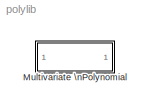
MODEL polylib
KIND library
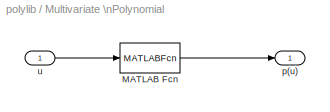
BLOCK [SubSystem] Multivariate \nPolynomial
  FunctionWithSeparateData = off
  MaskCallbackString = |
  MaskDescription = This block implements a multivariate polynomial object. \n\nThe block output is given by evaluating the polynomial p at the input values u. The order of the values in u should correspond to the vector of variables listed in x.\n
  MaskEnableString = on,on
  MaskHideContents = off
  MaskIconFrame = on
  MaskIconOpaque = on
  MaskIconRotate = none
  MaskIconUnits = autoscale
  MaskInitialization = % Check that x is a pvar\nif ~ispvar(x)\n    error('The parameter x must be a vector of polynomial variables.');\nend\n\n% Get vars, coeffs, and degmat of p\nxv = char(x);\npdeg = p.degmat;\npcoef = p.coefficient;\npv = p.varname;\n\n% Resort degmat based on order of vars in x\n[tf,loc]=ismember(pv,xv);    \npidx = loc;\n%pdeg = pdeg(:,pidx);\n\n%g = @(xval)peval(xval,pcoef,pdeg);
  MaskPortRotate = default
  MaskPromptString = p (Polynomial object)|x  (Vector of polynomial variables)
  MaskStyleString = edit,edit
  MaskToolTipString = on,on
  MaskTunableValueString = on,on
  MaskType = Multivariate Polynomial
  MaskValueString = p|x
  MaskVariables = p=@1;x=@2;
  MaskVisibilityString = on,on
  MinAlgLoopOccurrences = off
  Opaque = off
  Ports = [1, 1]
  PropExecContextOutsideSubsystem = off
  RTWSystemCode = Auto
  RequestExecContextInheritance = off
  SID = 1
BLOCK [MATLABFcn] Multivariate \nPolynomial/MATLAB Fcn
  MATLABFcn = peval(u(pidx),pcoef,pdeg);
  Ports = [1, 1]
  SID = 3
BLOCK [Outport] Multivariate \nPolynomial/p(u)
  IconDisplay = Port number
  OutDataType = sfix(16)
  OutScaling = 2^0
  SID = 4
BLOCK [Inport] Multivariate \nPolynomial/u
  IconDisplay = Port number
  OutDataType = sfix(16)
  OutScaling = 2^0
  SID = 2
LINE Multivariate \nPolynomial/MATLAB Fcn:1 -> Multivariate \nPolynomial/p(u):1
LINE Multivariate \nPolynomial/u:1 -> Multivariate \nPolynomial/MATLAB Fcn:1
